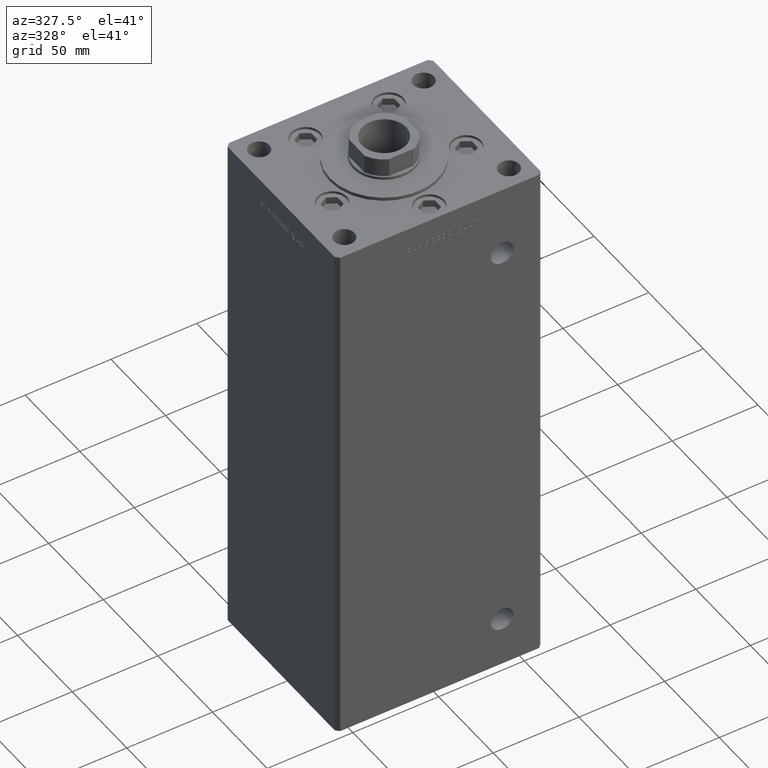
[diagram: clean part render]
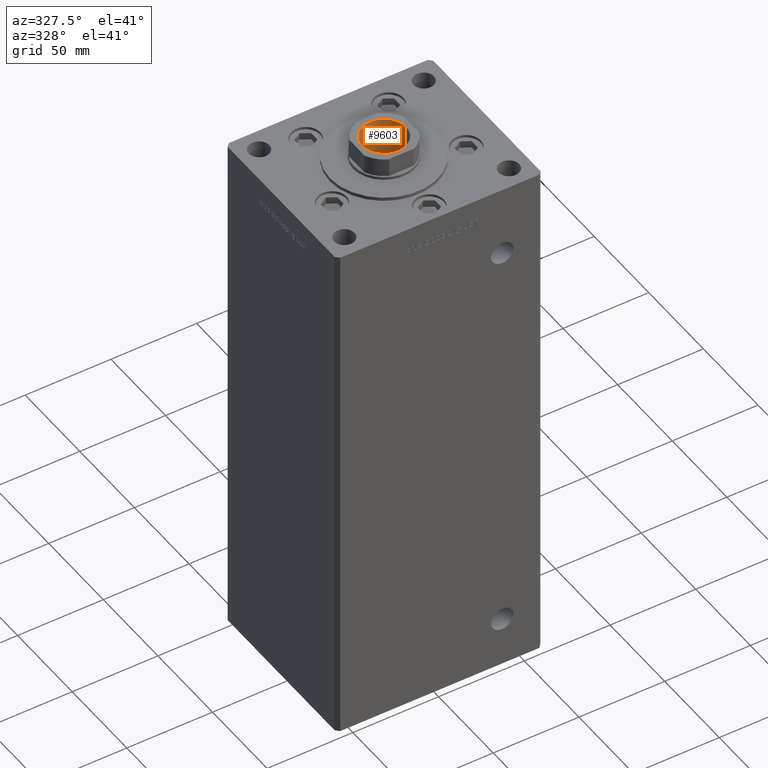
[diagram: same view with one face highlighted and labeled with its STEP entity id]
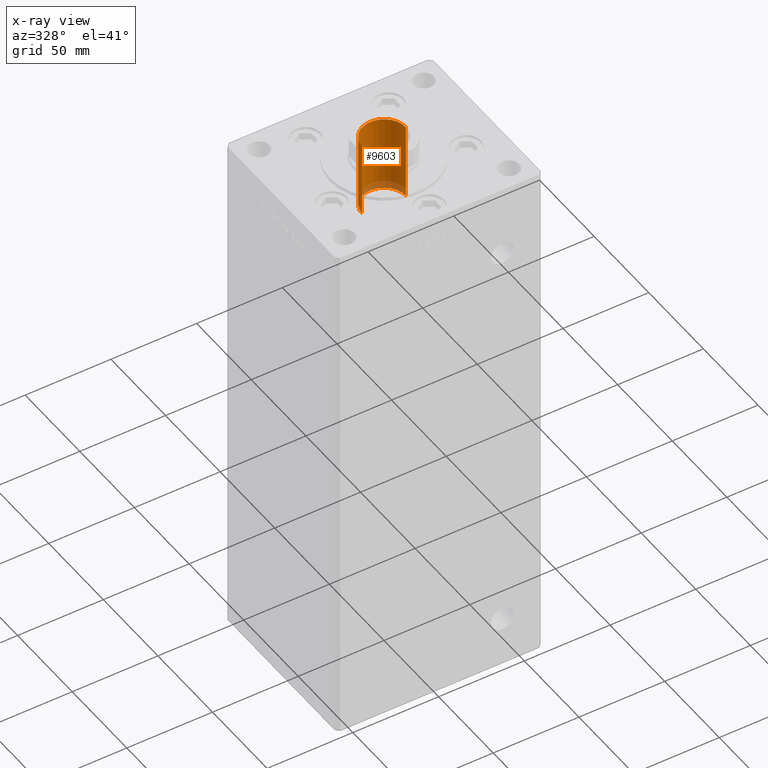
[diagram: x-ray of the same camera — body ghosted, the highlighted face saturated]
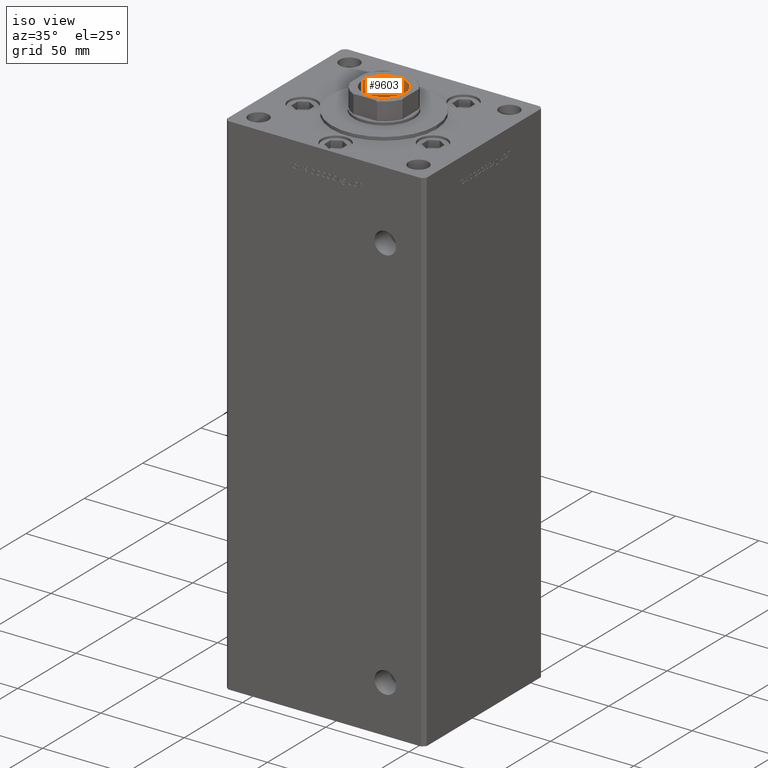
[diagram: same view with one face highlighted and labeled with its STEP entity id]
A machine part, auxiliary view. The second image highlights one B-rep face of the part: STEP entity #9603.
The next image is the same camera in x-ray: the body ghosted, the highlighted face saturated — about 10% of this face is hidden behind the body in this view.
A second angle (iso view) of the same face is appended — the face is thin or edge-on in the first view.
In plain terms, the highlighted cylindrical surface (edge-blend (fillet) strip) has radius 12.75 mm, axis along (0, 0, 1).
Its self-contained STEP definition (entity closure, byte-faithful):
#236 = DIRECTION ( 'NONE',  ( -0.000000000000000000, -0.000000000000000000, 1.000000000000000000 ) ) ;
#987 = CARTESIAN_POINT ( 'NONE',  ( -12.74999999999999112, 1.561424668912874125E-15, 244.2500000000000284 ) ) ;
#2134 = EDGE_CURVE ( 'NONE', #48261, #36068, #38418, .T. ) ;
#2488 = FACE_OUTER_BOUND ( 'NONE', #23051, .T. ) ;
#6294 = EDGE_CURVE ( 'NONE', #48261, #19494, #32630, .T. ) ;
#7290 = ORIENTED_EDGE ( 'NONE', *, *, #41725, .T. ) ;
#7348 = CARTESIAN_POINT ( 'NONE',  ( -12.74999999999999467, 1.561424668912874519E-15, 289.2500000000000000 ) ) ;
#7707 = ORIENTED_EDGE ( 'NONE', *, *, #2134, .T. ) ;
#8684 = DIRECTION ( 'NONE',  ( 1.000000000000000000, 0.000000000000000000, 0.000000000000000000 ) ) ;
#9603 = ADVANCED_FACE ( 'NONE', ( #2488 ), #18050, .F. ) ;
#11985 = CARTESIAN_POINT ( 'NONE',  ( 12.74999999999999112, 0.000000000000000000, 244.2500000000000284 ) ) ;
#12603 = VERTEX_POINT ( 'NONE', #44138 ) ;
#16321 = DIRECTION ( 'NONE',  ( -0.000000000000000000, -0.000000000000000000, 1.000000000000000000 ) ) ;
#18050 = CYLINDRICAL_SURFACE ( 'NONE', #45441, 12.74999999999999467 ) ;
#18563 = DIRECTION ( 'NONE',  ( -0.000000000000000000, -0.000000000000000000, 1.000000000000000000 ) ) ;
#19494 = VERTEX_POINT ( 'NONE', #987 ) ;
#23051 = EDGE_LOOP ( 'NONE', ( #51219, #50119, #7707, #7290 ) ) ;
#24869 = CARTESIAN_POINT ( 'NONE',  ( 0.000000000000000000, 0.000000000000000000, 288.9499999999999318 ) ) ;
#25971 = CIRCLE ( 'NONE', #36926, 12.74999999999999467 ) ;
#28157 = LINE ( 'NONE', #7348, #46854 ) ;
#29998 = CARTESIAN_POINT ( 'NONE',  ( 12.74999999999999467, 0.000000000000000000, 289.2500000000000000 ) ) ;
#30940 = DIRECTION ( 'NONE',  ( 1.000000000000000000, 0.000000000000000000, 0.000000000000000000 ) ) ;
#32630 = CIRCLE ( 'NONE', #50319, 12.74999999999999112 ) ;
#34735 = DIRECTION ( 'NONE',  ( -0.000000000000000000, -0.000000000000000000, 1.000000000000000000 ) ) ;
#35543 = EDGE_CURVE ( 'NONE', #19494, #12603, #28157, .T. ) ;
#36068 = VERTEX_POINT ( 'NONE', #45139 ) ;
#36195 = DIRECTION ( 'NONE',  ( 1.000000000000000000, 0.000000000000000000, 0.000000000000000000 ) ) ;
#36926 = AXIS2_PLACEMENT_3D ( 'NONE', #24869, #49115, #36195 ) ;
#38418 = LINE ( 'NONE', #29998, #49341 ) ;
#41089 = CARTESIAN_POINT ( 'NONE',  ( 0.000000000000000000, 0.000000000000000000, 244.2500000000000284 ) ) ;
#41725 = EDGE_CURVE ( 'NONE', #36068, #12603, #25971, .T. ) ;
#44138 = CARTESIAN_POINT ( 'NONE',  ( -12.74999999999999467, 1.561424668912874519E-15, 288.9499999999999318 ) ) ;
#45139 = CARTESIAN_POINT ( 'NONE',  ( 12.74999999999999467, 0.000000000000000000, 288.9499999999999318 ) ) ;
#45441 = AXIS2_PLACEMENT_3D ( 'NONE', #47024, #18563, #30940 ) ;
#46854 = VECTOR ( 'NONE', #236, 1000.000000000000000 ) ;
#47024 = CARTESIAN_POINT ( 'NONE',  ( 0.000000000000000000, 0.000000000000000000, 289.2500000000000000 ) ) ;
#48261 = VERTEX_POINT ( 'NONE', #11985 ) ;
#49115 = DIRECTION ( 'NONE',  ( 0.000000000000000000, 0.000000000000000000, 1.000000000000000000 ) ) ;
#49341 = VECTOR ( 'NONE', #34735, 1000.000000000000000 ) ;
#50119 = ORIENTED_EDGE ( 'NONE', *, *, #6294, .F. ) ;
#50319 = AXIS2_PLACEMENT_3D ( 'NONE', #41089, #16321, #8684 ) ;
#51219 = ORIENTED_EDGE ( 'NONE', *, *, #35543, .F. ) ;